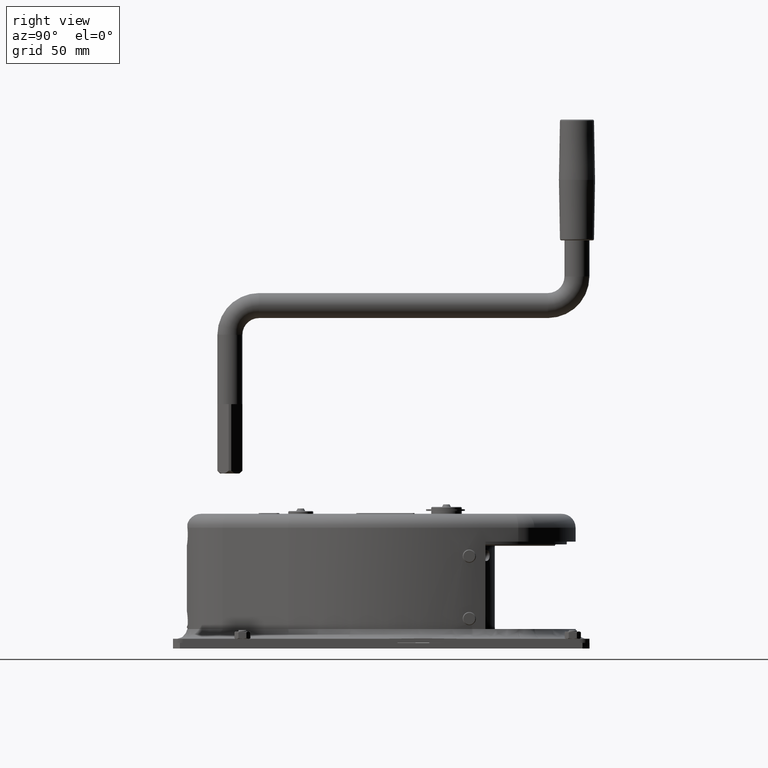
[diagram: clean part render]
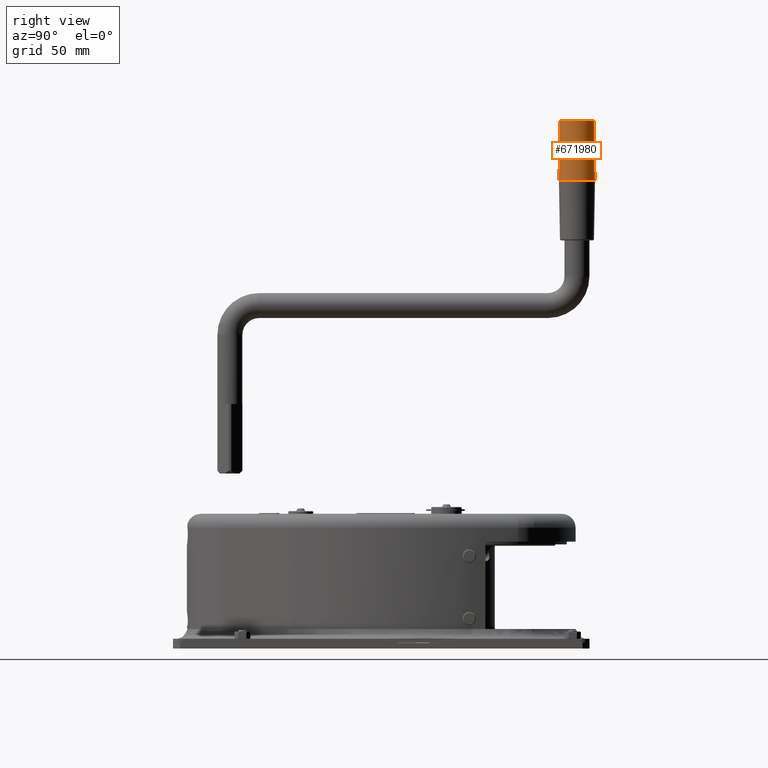
[diagram: same view with one face highlighted and labeled with its STEP entity id]
A machine part, right view. The second image highlights one B-rep face of the part: STEP entity #671980.
In plain terms, the highlighted conical surface has half-angle 1 deg.
Its self-contained STEP definition (entity closure, byte-faithful):
#671360=CARTESIAN_POINT('',(211.5,-237.,-1.59204083889156E-15));
#671370=VERTEX_POINT('',#671360);
#671400=CARTESIAN_POINT('',(211.5,-250.,0.));
#671410=DIRECTION('',(1.,0.,0.));
#671420=DIRECTION('',(0.,1.,0.));
#671430=AXIS2_PLACEMENT_3D('',#671400,#671410,#671420);
#671440=CIRCLE('',#671430,13.);
#671450=CARTESIAN_POINT('',(211.5,-263.,0.));
#671460=VERTEX_POINT('',#671450);
#671470=EDGE_CURVE('',#671370,#671460,#671440,.T.);
#671670=CARTESIAN_POINT('',(211.5,-250.,0.));
#671680=DIRECTION('',(-1.,0.,0.));
#671690=DIRECTION('',(0.,1.,0.));
#671700=AXIS2_PLACEMENT_3D('',#671670,#671680,#671690);
#671710=CONICAL_SURFACE('',#671700,13.,0.0174532925199439);
#671720=CARTESIAN_POINT('',(211.5,-263.,-1.59204083889156E-15));
#671730=DIRECTION('',(-0.999847695156391,-0.0174524064372841,
-2.13730336808387E-18));
#671740=VECTOR('',#671730,744.882950481127);
#671750=LINE('',#671720,#671740);
#671760=CARTESIAN_POINT('',(254.017452406437,-262.257855107663,0.));
#671770=VERTEX_POINT('',#671760);
#671780=EDGE_CURVE('',#671770,#671460,#671750,.T.);
#671790=ORIENTED_EDGE('',*,*,#671780,.F.);
#671800=ORIENTED_EDGE('',*,*,#671470,.T.);
#671810=CARTESIAN_POINT('',(211.5,-237.,0.));
#671820=DIRECTION('',(-0.999847695156391,0.0174524064372841,0.));
#671830=VECTOR('',#671820,744.882950481127);
#671840=LINE('',#671810,#671830);
#671850=CARTESIAN_POINT('',(254.017452406437,-237.742144892337,0.));
#671860=VERTEX_POINT('',#671850);
#671870=EDGE_CURVE('',#671860,#671370,#671840,.T.);
#671880=ORIENTED_EDGE('',*,*,#671870,.T.);
#671890=CARTESIAN_POINT('',(254.017452406437,-250.,0.));
#671900=DIRECTION('',(1.,0.,0.));
#671910=DIRECTION('',(0.,1.,0.));
#671920=AXIS2_PLACEMENT_3D('',#671890,#671900,#671910);
#671930=CIRCLE('',#671920,12.2578551076632);
#671940=EDGE_CURVE('',#671860,#671770,#671930,.T.);
#671950=ORIENTED_EDGE('',*,*,#671940,.F.);
#671960=EDGE_LOOP('',(#671950,#671880,#671800,#671790));
#671970=FACE_OUTER_BOUND('',#671960,.T.);
#671980=ADVANCED_FACE('',(#671970),#671710,.T.);